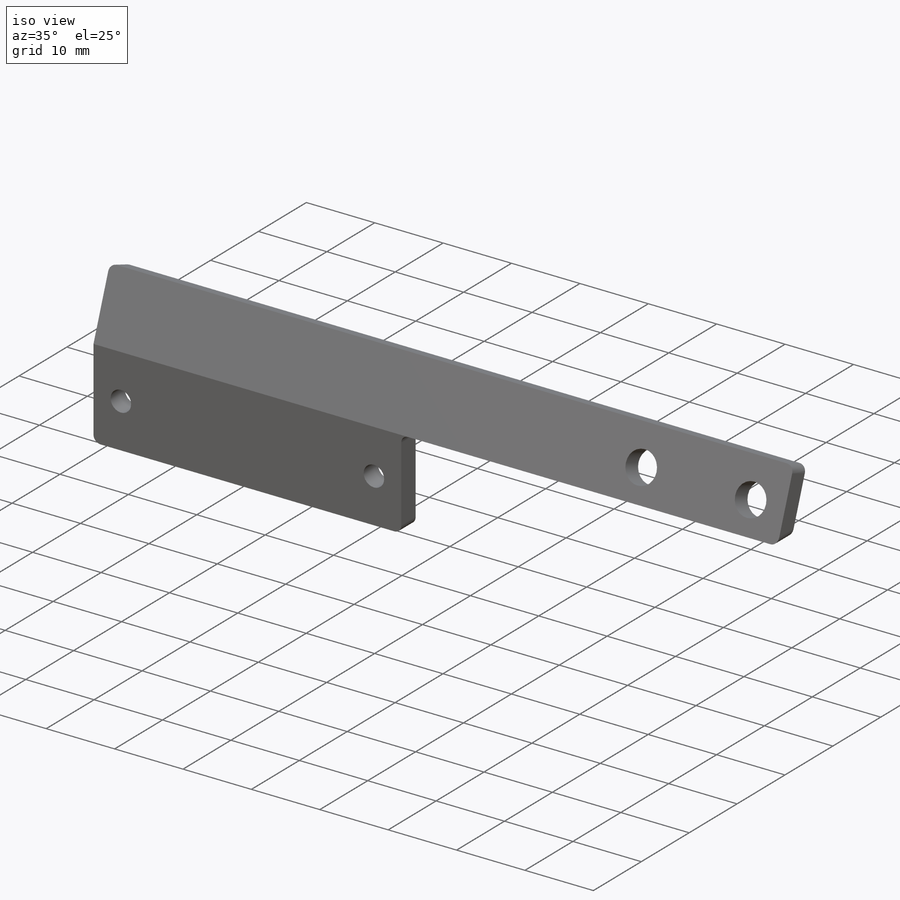
[diagram: iso view]
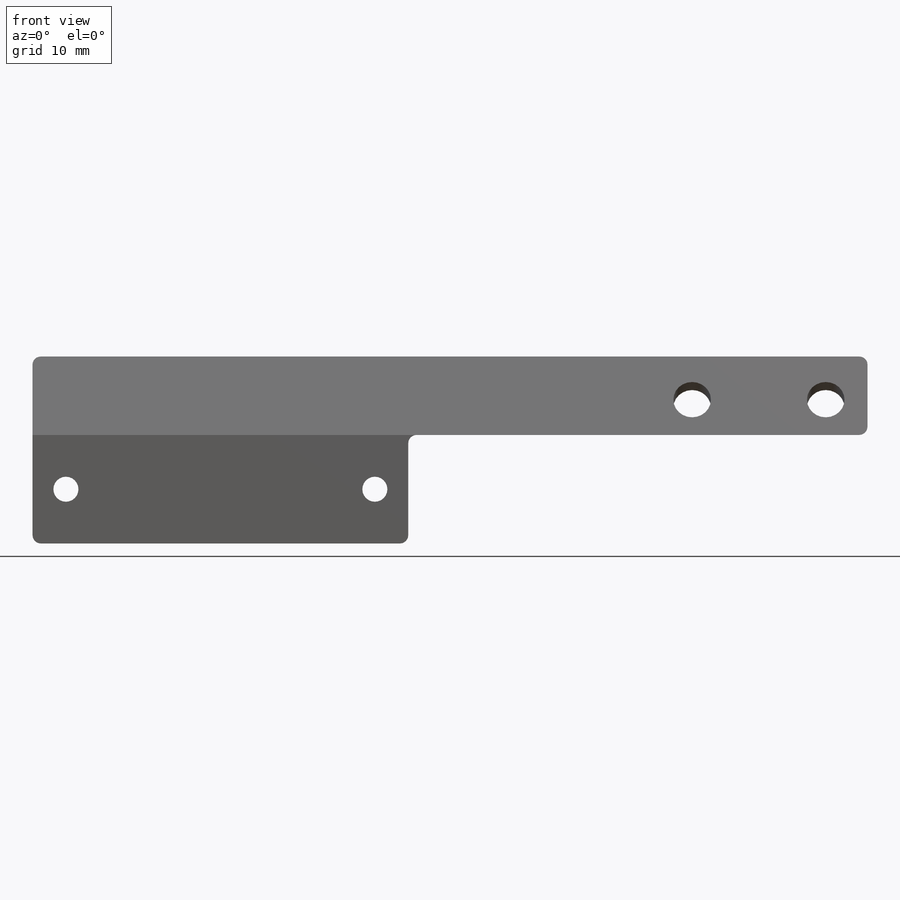
[diagram: front view]
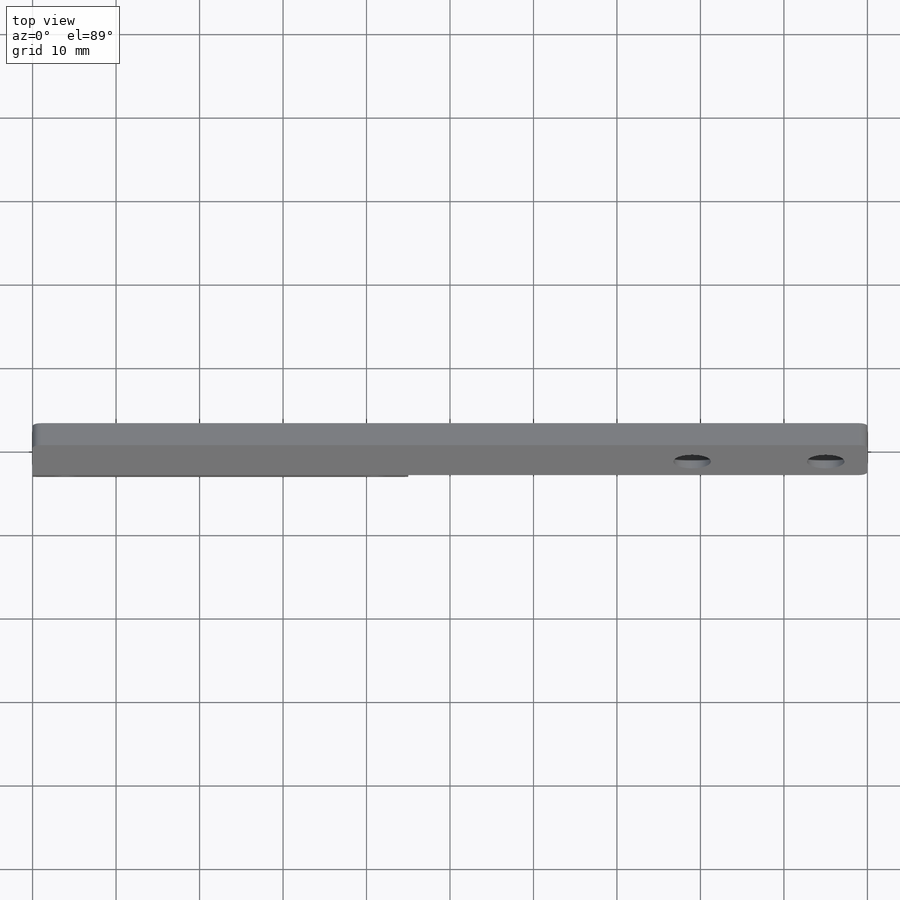
[diagram: top view]
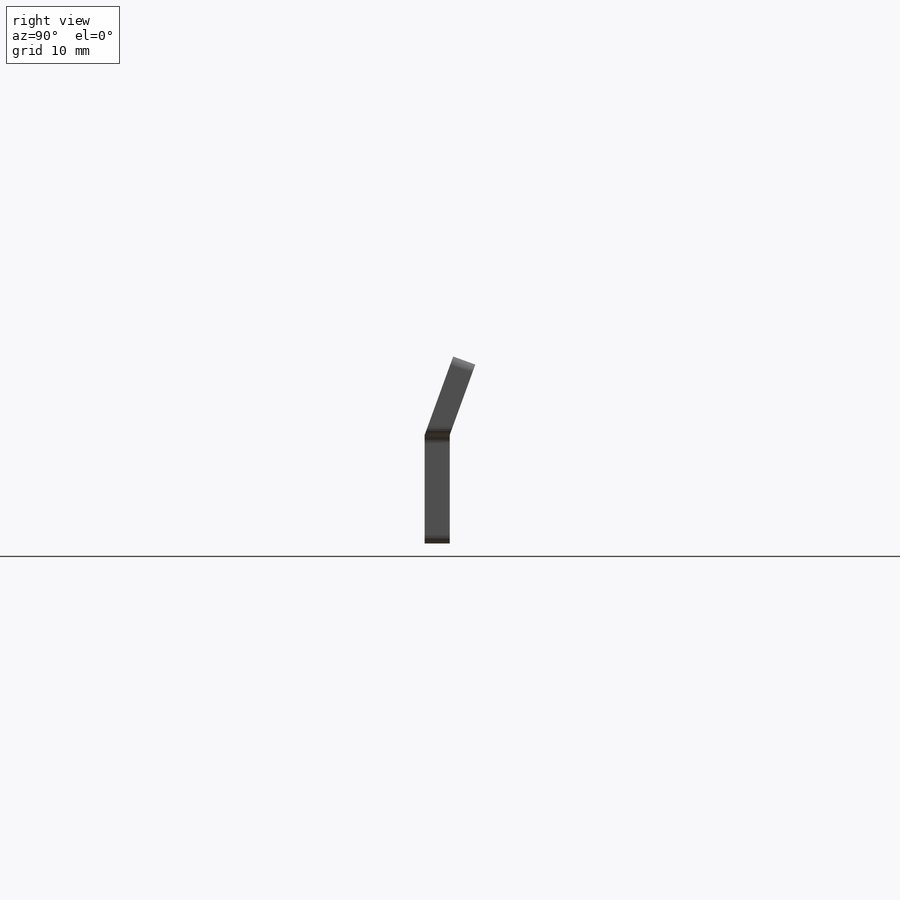
[diagram: right view]
SOLIDWORKS PART (.sldprt)
format: sldprt  version: not decoded by parser v0  size: 227,840 bytes
history: native  units: mm
features: plane x5, sketch x4, extrude x2, cut_extrude x2, material x1, mirror x1, fillet x1, pattern_linear x1 (+10 scaffold rows collapsed)
feature tree (27):
  scaffold x10  (default folders/planes/origin — collapsed)
  material  "Material <not specified>"
  plane  "Plan de face"
  plane  "Plan de dessus"
  plane  "Plan de droite"
  sketch  "Esquisse1"  dims[D1=13.0mm D2=45.0mm]
  extrude  "Boss.-Extru.1"  Depth=3mm
  plane  "Plan1"
  sketch  "Esquisse2"  dims[D2=3.0mm D1=18.5mm D3=6.5mm]
  cut_extrude  "Enlèv. mat.-Extru.1"  [1 undecoded]
  mirror  "Symétrie1"
  plane  "Plan2"
  sketch  "Esquisse8"  dims[c1.D1=~8.97394mm c1.D2=10.0mm c2.D2=20.0deg]
  extrude  "Boss.-Extru.3"  Depth=100mm
  fillet  "Congé1"  Radius=1mm
  sketch  "Esquisse12"  dims[D3=4.5mm D1=5.0mm D2=4.5mm]
  cut_extrude  "Enlèv. mat.-Extru.3"  [1 undecoded]
  pattern_linear  "Répétition linéaire1"  Count1=2 Count2=1 Spacing1=16mm Spacing2=10mm
decode coverage: 8 of 11 modeling features carry decoded parameters
note: ~ marks probable driven/reference dimensions
note: 2 parameter values undecoded
note: suppression state not decoded; provenance and decode notes live in map.json
